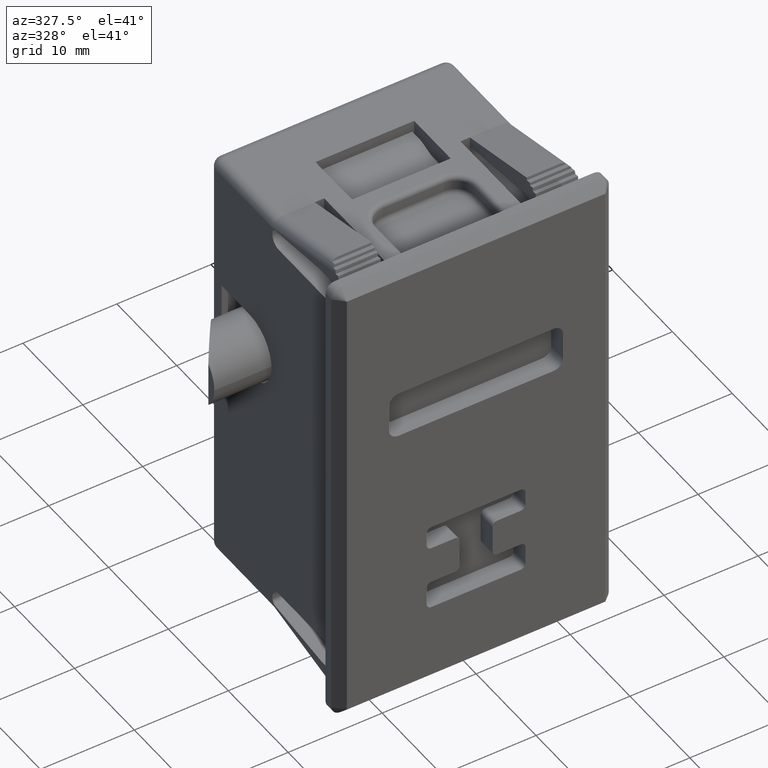
[diagram: clean part render]
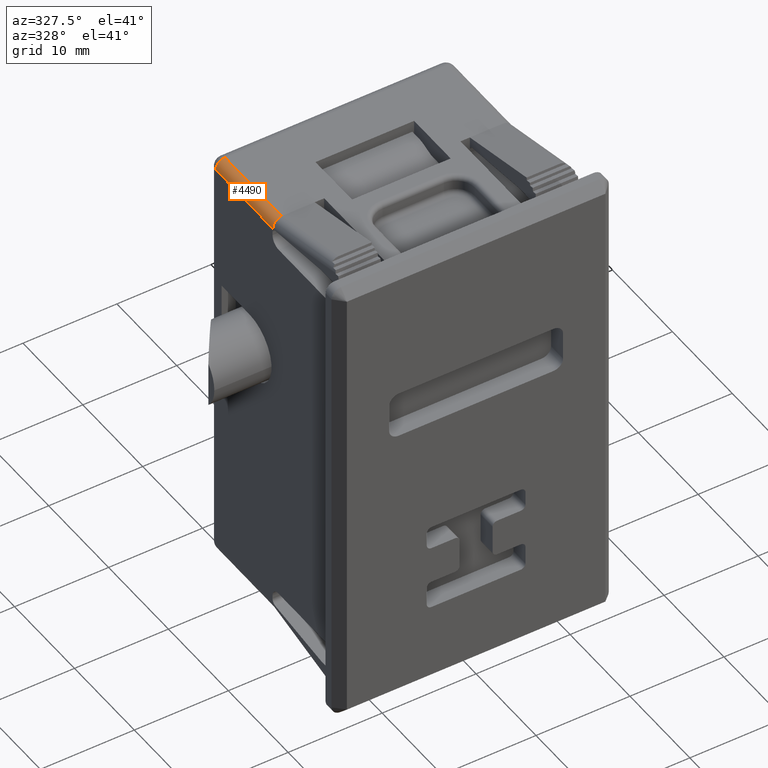
[diagram: same view with one face highlighted and labeled with its STEP entity id]
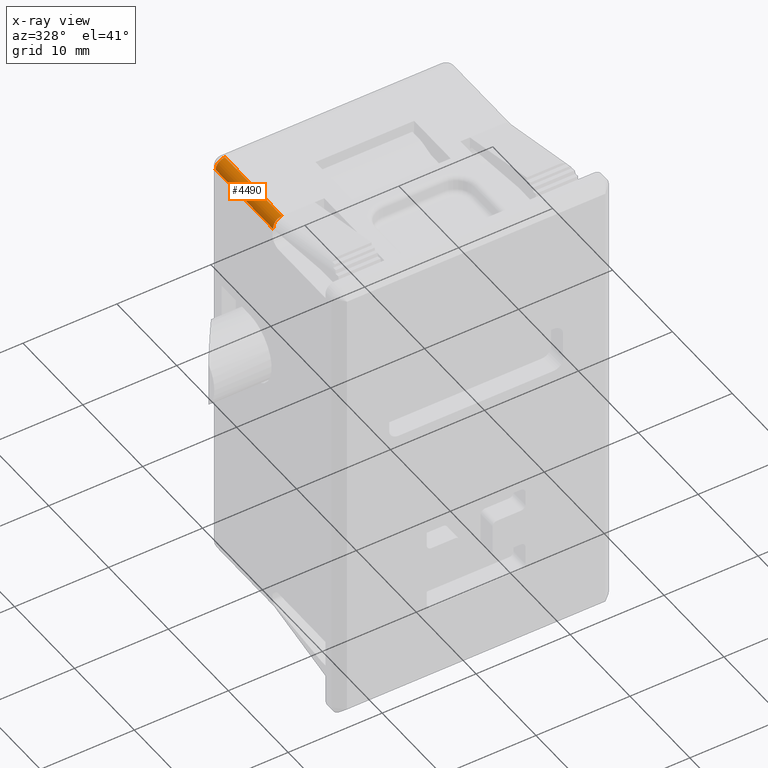
[diagram: x-ray of the same camera — body ghosted, the highlighted face saturated]
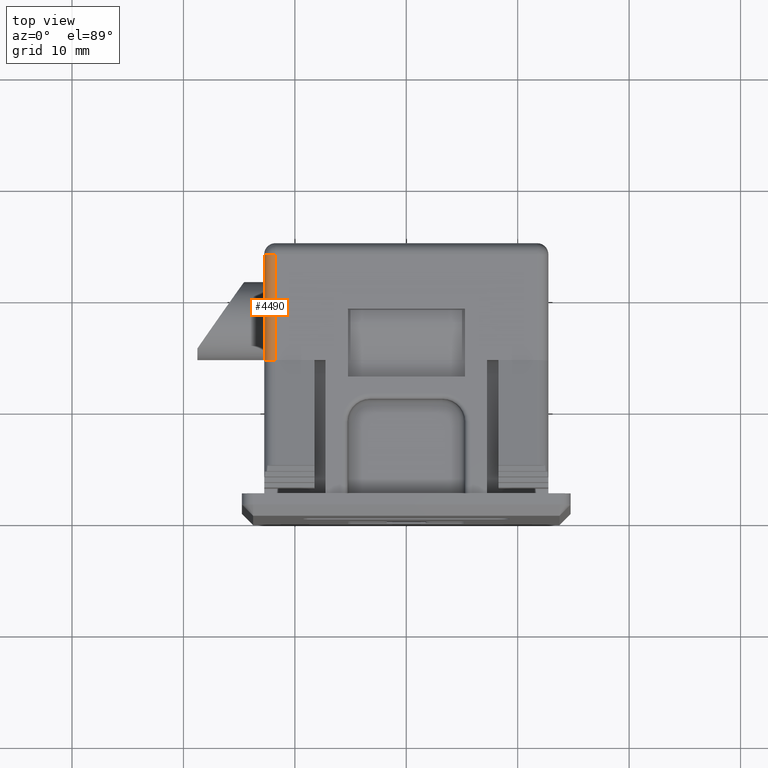
[diagram: same view with one face highlighted and labeled with its STEP entity id]
A machine part, auxiliary view. The second image highlights one B-rep face of the part: STEP entity #4490.
The next image is the same camera in x-ray: the body ghosted, the highlighted face saturated — about 0% of this face is hidden behind the body in this view.
A second angle (top view) of the same face is appended — the face is thin or edge-on in the first view.
In plain terms, the highlighted cylindrical surface (edge-blend (fillet) strip) has radius 1 mm, axis along (0, -1, 0).
Its self-contained STEP definition (entity closure, byte-faithful):
#154 = EDGE_CURVE ( 'NONE', #4565, #291, #4404, .T. ) ;
#162 = EDGE_LOOP ( 'NONE', ( #4629, #2395, #4014, #3973 ) ) ;
#174 = CARTESIAN_POINT ( 'NONE',  ( -11.75000000000000000, 23.49999999999229800, 22.25000000000000000 ) ) ;
#175 = CARTESIAN_POINT ( 'NONE',  ( -12.74999999999984000, 13.88656164583003900, 22.25000000000000000 ) ) ;
#214 = CARTESIAN_POINT ( 'NONE',  ( -11.74999999999983800, 1002.000000000000000, 23.25000000000000000 ) ) ;
#291 = VERTEX_POINT ( 'NONE', #1273 ) ;
#479 = LINE ( 'NONE', #4868, #4364 ) ;
#948 = CARTESIAN_POINT ( 'NONE',  ( -11.74999999999983800, 1002.000000000000000, 22.25000000000000000 ) ) ;
#1094 =( BOUNDED_CURVE ( )  B_SPLINE_CURVE ( 3, ( #1155, #2673, #3190, #175 ),
 .UNSPECIFIED., .F., .F. ) 
 B_SPLINE_CURVE_WITH_KNOTS ( ( 4, 4 ),
 ( 0.0000000000000000000, 1.570796326794892600 ),
 .UNSPECIFIED. ) 
 CURVE ( )  GEOMETRIC_REPRESENTATION_ITEM ( )  RATIONAL_B_SPLINE_CURVE ( ( 1.000000000000000000, 0.8047378541243658300, 0.8047378541243658300, 1.000000000000000000 ) ) 
 REPRESENTATION_ITEM ( '' )  );
#1152 = DIRECTION ( 'NONE',  ( 0.0000000000000000000, 0.0000000000000000000, -1.000000000000000000 ) ) ;
#1155 = CARTESIAN_POINT ( 'NONE',  ( -11.74999999999981900, 14.00000000000912000, 23.25000000002425100 ) ) ;
#1257 = VERTEX_POINT ( 'NONE', #1478 ) ;
#1273 = CARTESIAN_POINT ( 'NONE',  ( -12.75000000000000000, 23.49999999999229800, 22.25000000000000000 ) ) ;
#1478 = CARTESIAN_POINT ( 'NONE',  ( -11.74999999999981900, 14.00000000000912000, 23.25000000002425100 ) ) ;
#1503 = CARTESIAN_POINT ( 'NONE',  ( -12.74999999999984000, 13.88656164583003900, 22.25000000000000000 ) ) ;
#1603 = LINE ( 'NONE', #214, #4454 ) ;
#1983 = DIRECTION ( 'NONE',  ( 0.0000000000000000000, -1.000000000000000000, 0.0000000000000000000 ) ) ;
#2117 = AXIS2_PLACEMENT_3D ( 'NONE', #174, #3188, #1152 ) ;
#2210 = DIRECTION ( 'NONE',  ( 0.0000000000000000000, -1.000000000000000000, 0.0000000000000000000 ) ) ;
#2395 = ORIENTED_EDGE ( 'NONE', *, *, #154, .T. ) ;
#2673 = CARTESIAN_POINT ( 'NONE',  ( -12.33578643762678000, 14.00000000011504600, 23.24999999999997500 ) ) ;
#2963 = EDGE_CURVE ( 'NONE', #4565, #1257, #1603, .T. ) ;
#3188 = DIRECTION ( 'NONE',  ( 0.0000000000000000000, -1.000000000000000000, 0.0000000000000000000 ) ) ;
#3190 = CARTESIAN_POINT ( 'NONE',  ( -12.74999999999985600, 13.95301229527704700, 22.83578643762686900 ) ) ;
#3341 = DIRECTION ( 'NONE',  ( -0.0000000000000000000, 1.000000000000000000, -0.0000000000000000000 ) ) ;
#3410 = EDGE_CURVE ( 'NONE', #1257, #4506, #1094, .T. ) ;
#3525 = FACE_OUTER_BOUND ( 'NONE', #162, .T. ) ;
#3562 = EDGE_CURVE ( 'NONE', #4506, #291, #479, .T. ) ;
#3973 = ORIENTED_EDGE ( 'NONE', *, *, #3410, .F. ) ;
#4014 = ORIENTED_EDGE ( 'NONE', *, *, #3562, .F. ) ;
#4071 = CARTESIAN_POINT ( 'NONE',  ( -11.75000000000000000, 23.49999999999229800, 23.25000000000000000 ) ) ;
#4364 = VECTOR ( 'NONE', #3341, 1000.000000000000000 ) ;
#4404 = CIRCLE ( 'NONE', #2117, 1.000000000000000900 ) ;
#4454 = VECTOR ( 'NONE', #2210, 1000.000000000000000 ) ;
#4490 = ADVANCED_FACE ( 'NONE', ( #3525 ), #6067, .T. ) ;
#4506 = VERTEX_POINT ( 'NONE', #1503 ) ;
#4565 = VERTEX_POINT ( 'NONE', #4071 ) ;
#4629 = ORIENTED_EDGE ( 'NONE', *, *, #2963, .F. ) ;
#4868 = CARTESIAN_POINT ( 'NONE',  ( -12.74999999999984000, 1002.000000000000000, 22.25000000000000000 ) ) ;
#5519 = DIRECTION ( 'NONE',  ( 0.0000000000000000000, 0.0000000000000000000, -1.000000000000000000 ) ) ;
#5909 = AXIS2_PLACEMENT_3D ( 'NONE', #948, #1983, #5519 ) ;
#6067 = CYLINDRICAL_SURFACE ( 'NONE', #5909, 1.000000000000000900 ) ;